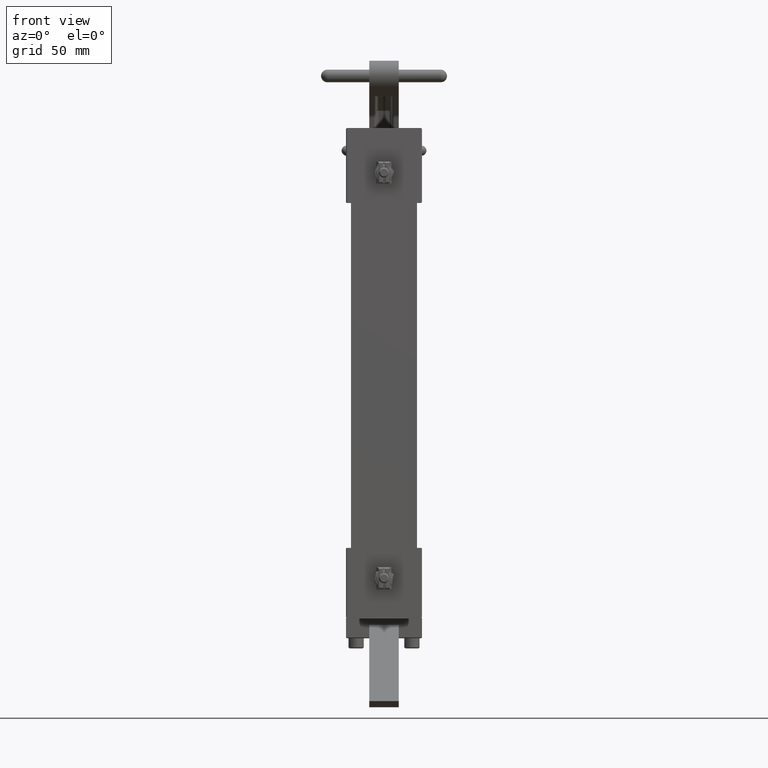
[diagram: clean part render]
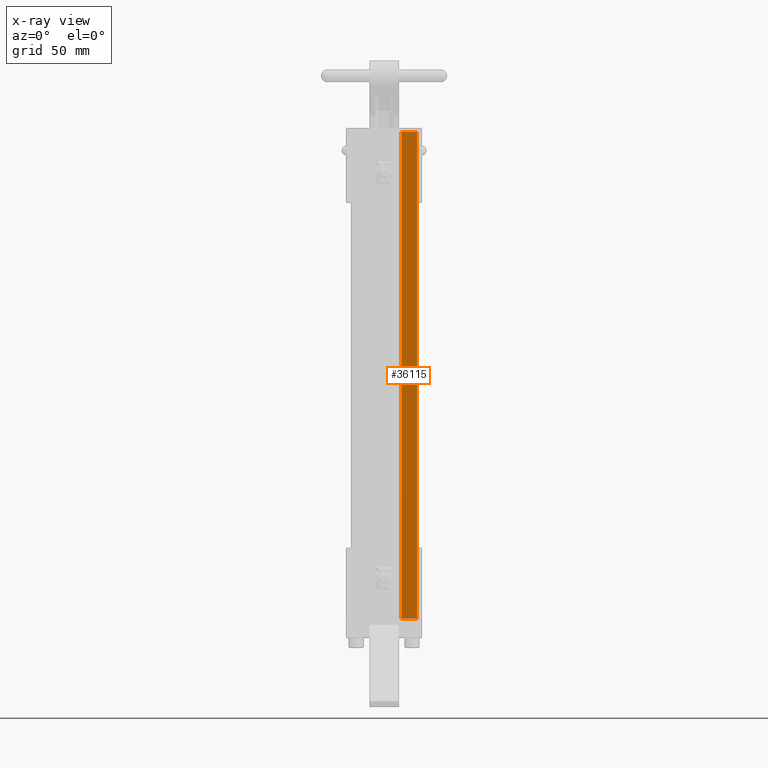
[diagram: x-ray — body ghosted, one internal face saturated and labeled with its STEP entity id]
A machine part, front view, then the same camera in x-ray: the body is ghosted and one INTERNAL B-rep face — a face not visible from any outside direction — is saturated and labeled: STEP entity #36115.
In plain terms, the highlighted planar face has unit normal (0, -1, 0).
Its self-contained STEP definition (entity closure, byte-faithful):
#906 = ORIENTED_EDGE ( 'NONE', *, *, #33371, .T. ) ;
#1350 = CARTESIAN_POINT ( 'NONE',  ( 0.4284999999999999400, 1.625000000000000200, 6.000000000000000900 ) ) ;
#2079 = VECTOR ( 'NONE', #10484, 39.37007874015748100 ) ;
#2140 = DIRECTION ( 'NONE',  ( -0.0000000000000000000, -0.0000000000000000000, -1.000000000000000000 ) ) ;
#3559 = ORIENTED_EDGE ( 'NONE', *, *, #16954, .F. ) ;
#6602 = AXIS2_PLACEMENT_3D ( 'NONE', #19190, #10177, #31363 ) ;
#7140 = PLANE ( 'NONE',  #6602 ) ;
#8162 = LINE ( 'NONE', #38403, #25250 ) ;
#8396 = CARTESIAN_POINT ( 'NONE',  ( 0.8125000000000000000, 1.625000000000000200, 6.000000000000000900 ) ) ;
#8677 = LINE ( 'NONE', #13977, #38991 ) ;
#10039 = EDGE_CURVE ( 'NONE', #22644, #21245, #27226, .T. ) ;
#10140 = VECTOR ( 'NONE', #21738, 39.37007874015748100 ) ;
#10177 = DIRECTION ( 'NONE',  ( 0.0000000000000000000, -1.000000000000000000, 0.0000000000000000000 ) ) ;
#10484 = DIRECTION ( 'NONE',  ( -0.0000000000000000000, -0.0000000000000000000, -1.000000000000000000 ) ) ;
#10563 = EDGE_LOOP ( 'NONE', ( #906, #11542, #3559, #38507 ) ) ;
#11542 = ORIENTED_EDGE ( 'NONE', *, *, #10039, .F. ) ;
#12703 = VERTEX_POINT ( 'NONE', #8396 ) ;
#13977 = CARTESIAN_POINT ( 'NONE',  ( 0.8125000000000000000, 1.625000000000000200, -6.000000000000000900 ) ) ;
#14652 = CARTESIAN_POINT ( 'NONE',  ( 0.4284999999999999400, 1.625000000000000200, -6.000000000000000900 ) ) ;
#16954 = EDGE_CURVE ( 'NONE', #12703, #22644, #24372, .T. ) ;
#17020 = DIRECTION ( 'NONE',  ( -1.000000000000000000, 0.0000000000000000000, 0.0000000000000000000 ) ) ;
#18222 = EDGE_CURVE ( 'NONE', #12703, #33753, #8162, .T. ) ;
#19190 = CARTESIAN_POINT ( 'NONE',  ( 0.8125000000000000000, 1.625000000000000200, 6.000000000000000900 ) ) ;
#21245 = VERTEX_POINT ( 'NONE', #14652 ) ;
#21738 = DIRECTION ( 'NONE',  ( -1.000000000000000000, 0.0000000000000000000, 0.0000000000000000000 ) ) ;
#22644 = VERTEX_POINT ( 'NONE', #38421 ) ;
#24372 = LINE ( 'NONE', #30868, #10140 ) ;
#25250 = VECTOR ( 'NONE', #2140, 39.37007874015748100 ) ;
#27226 = LINE ( 'NONE', #1350, #2079 ) ;
#30868 = CARTESIAN_POINT ( 'NONE',  ( 0.8125000000000000000, 1.625000000000000200, 6.000000000000000900 ) ) ;
#31363 = DIRECTION ( 'NONE',  ( 0.0000000000000000000, -0.0000000000000000000, -1.000000000000000000 ) ) ;
#33371 = EDGE_CURVE ( 'NONE', #33753, #21245, #8677, .T. ) ;
#33753 = VERTEX_POINT ( 'NONE', #36310 ) ;
#36115 = ADVANCED_FACE ( 'NONE', ( #36456 ), #7140, .F. ) ;
#36310 = CARTESIAN_POINT ( 'NONE',  ( 0.8125000000000000000, 1.625000000000000200, -6.000000000000000900 ) ) ;
#36456 = FACE_OUTER_BOUND ( 'NONE', #10563, .T. ) ;
#38403 = CARTESIAN_POINT ( 'NONE',  ( 0.8125000000000000000, 1.625000000000000200, 6.000000000000000900 ) ) ;
#38421 = CARTESIAN_POINT ( 'NONE',  ( 0.4284999999999999400, 1.625000000000000200, 6.000000000000000900 ) ) ;
#38507 = ORIENTED_EDGE ( 'NONE', *, *, #18222, .T. ) ;
#38991 = VECTOR ( 'NONE', #17020, 39.37007874015748100 ) ;